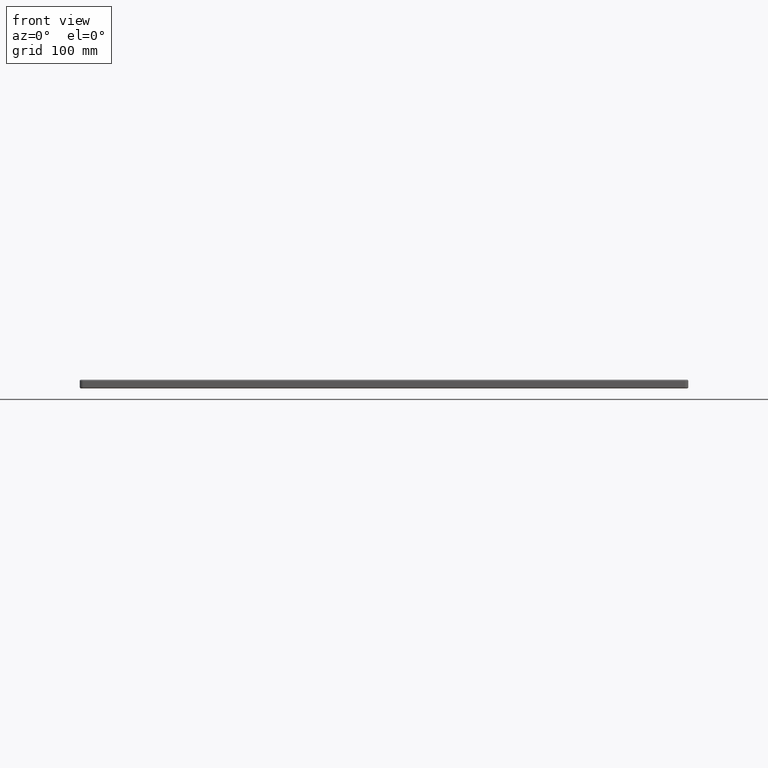
[diagram: clean part render]
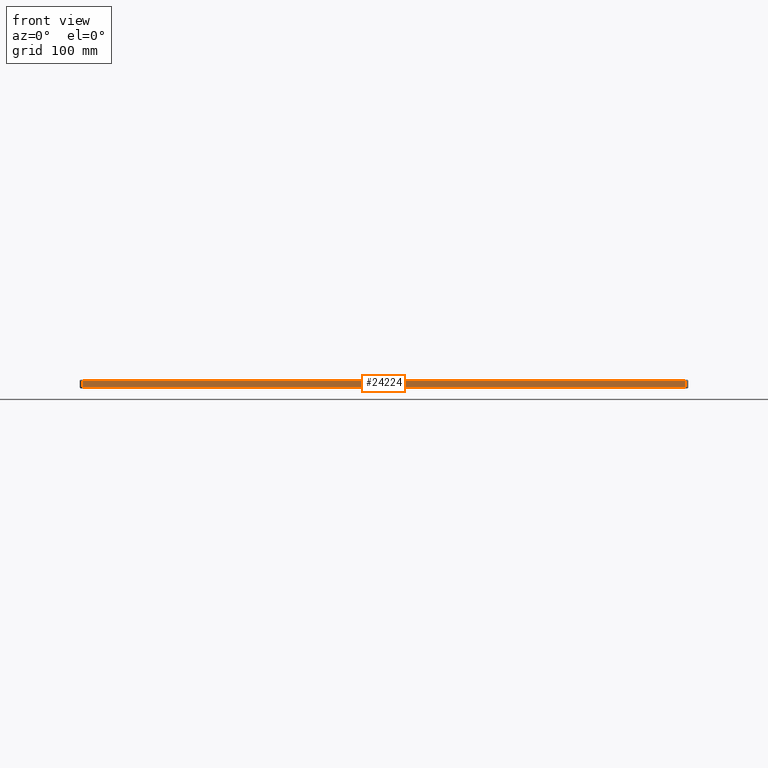
[diagram: same view with one face highlighted and labeled with its STEP entity id]
A machine part, front view. The second image highlights one B-rep face of the part: STEP entity #24224.
In plain terms, the highlighted planar face has unit normal (0, -1, 0).
Its self-contained STEP definition (entity closure, byte-faithful):
#791 = CARTESIAN_POINT ( 'NONE',  ( 0.0000000000000000000, 0.0000000000000000000, -13.00000000000000000 ) ) ;
#1094 = CARTESIAN_POINT ( 'NONE',  ( 895.0000000000000000, 0.0000000000000000000, -13.00000000000000000 ) ) ;
#9987 = EDGE_CURVE ( 'NONE', #38656, #21844, #34730, .T. ) ;
#13802 = CARTESIAN_POINT ( 'NONE',  ( 0.0000000000000000000, 0.0000000000000000000, -11.00000000000000000 ) ) ;
#14391 = DIRECTION ( 'NONE',  ( 1.000000000000000000, 0.0000000000000000000, 0.0000000000000000000 ) ) ;
#15050 = DIRECTION ( 'NONE',  ( 0.0000000000000000000, -1.000000000000000000, 0.0000000000000000000 ) ) ;
#15610 = VECTOR ( 'NONE', #14391, 1000.000000000000000 ) ;
#15848 = CARTESIAN_POINT ( 'NONE',  ( 4.999999999999999100, 0.0000000000000000000, -13.00000000000000000 ) ) ;
#16363 = CARTESIAN_POINT ( 'NONE',  ( 895.0000000000000000, 0.0000000000000000000, -11.00000000000000000 ) ) ;
#16786 = ORIENTED_EDGE ( 'NONE', *, *, #48614, .T. ) ;
#16981 = EDGE_CURVE ( 'NONE', #21844, #45699, #19074, .T. ) ;
#18468 = ORIENTED_EDGE ( 'NONE', *, *, #9987, .T. ) ;
#19074 = LINE ( 'NONE', #1094, #31605 ) ;
#19717 = ORIENTED_EDGE ( 'NONE', *, *, #29587, .T. ) ;
#20438 = PLANE ( 'NONE',  #51047 ) ;
#20884 = CARTESIAN_POINT ( 'NONE',  ( 4.999999999999999100, 0.0000000000000000000, -2.000000000000000000 ) ) ;
#21844 = VERTEX_POINT ( 'NONE', #16363 ) ;
#23794 = VERTEX_POINT ( 'NONE', #30087 ) ;
#24224 = ADVANCED_FACE ( 'NONE', ( #32835 ), #20438, .T. ) ;
#27964 = ORIENTED_EDGE ( 'NONE', *, *, #16981, .T. ) ;
#29587 = EDGE_CURVE ( 'NONE', #23794, #38656, #48784, .T. ) ;
#30081 = DIRECTION ( 'NONE',  ( -0.0000000000000000000, -0.0000000000000000000, -1.000000000000000000 ) ) ;
#30087 = CARTESIAN_POINT ( 'NONE',  ( 4.999999999999999100, 0.0000000000000000000, -2.000000000000000000 ) ) ;
#31605 = VECTOR ( 'NONE', #47292, 1000.000000000000000 ) ;
#32835 = FACE_OUTER_BOUND ( 'NONE', #42253, .T. ) ;
#34730 = LINE ( 'NONE', #13802, #15610 ) ;
#38656 = VERTEX_POINT ( 'NONE', #39457 ) ;
#39457 = CARTESIAN_POINT ( 'NONE',  ( 4.999999999999999100, 0.0000000000000000000, -11.00000000000000000 ) ) ;
#42253 = EDGE_LOOP ( 'NONE', ( #19717, #18468, #27964, #16786 ) ) ;
#42439 = VECTOR ( 'NONE', #49038, 1000.000000000000000 ) ;
#45699 = VERTEX_POINT ( 'NONE', #53102 ) ;
#47292 = DIRECTION ( 'NONE',  ( 0.0000000000000000000, 0.0000000000000000000, 1.000000000000000000 ) ) ;
#47616 = LINE ( 'NONE', #20884, #42439 ) ;
#48004 = DIRECTION ( 'NONE',  ( 0.0000000000000000000, -0.0000000000000000000, -1.000000000000000000 ) ) ;
#48614 = EDGE_CURVE ( 'NONE', #45699, #23794, #47616, .T. ) ;
#48784 = LINE ( 'NONE', #15848, #56226 ) ;
#49038 = DIRECTION ( 'NONE',  ( -1.000000000000000000, -0.0000000000000000000, 0.0000000000000000000 ) ) ;
#51047 = AXIS2_PLACEMENT_3D ( 'NONE', #791, #15050, #48004 ) ;
#53102 = CARTESIAN_POINT ( 'NONE',  ( 895.0000000000000000, 0.0000000000000000000, -2.000000000000000000 ) ) ;
#56226 = VECTOR ( 'NONE', #30081, 1000.000000000000000 ) ;